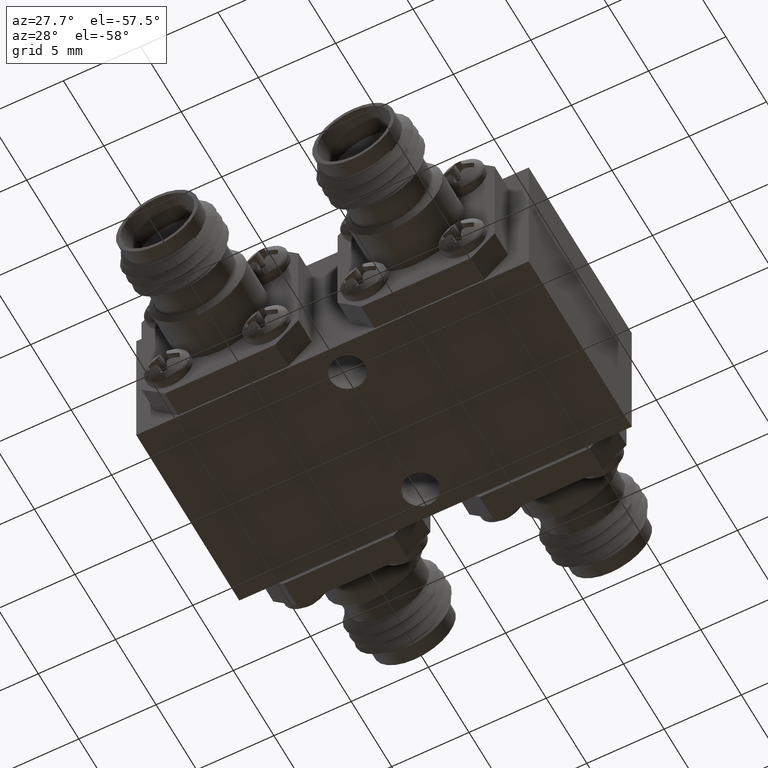
[diagram: clean part render]
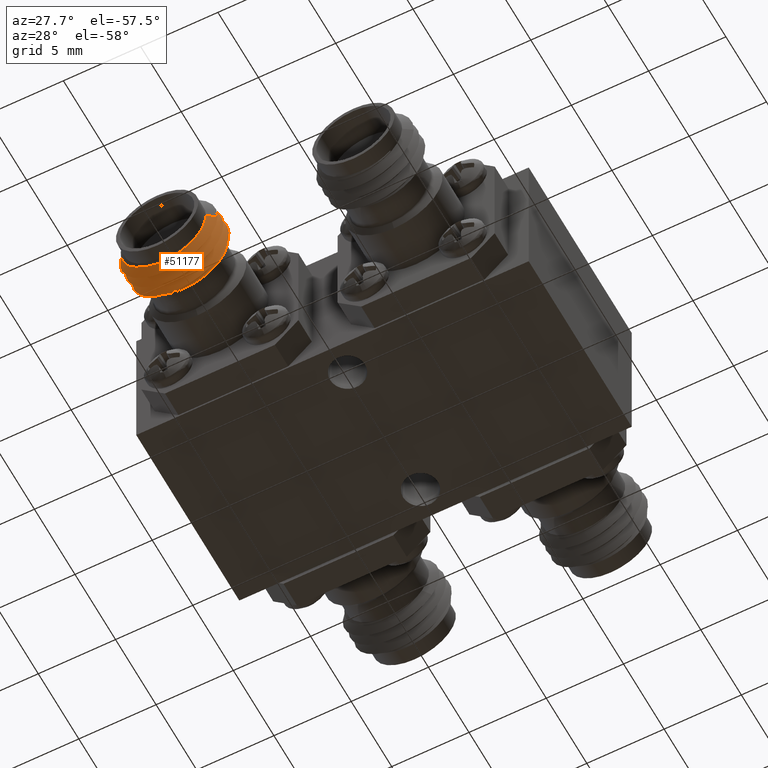
[diagram: same view with one face highlighted and labeled with its STEP entity id]
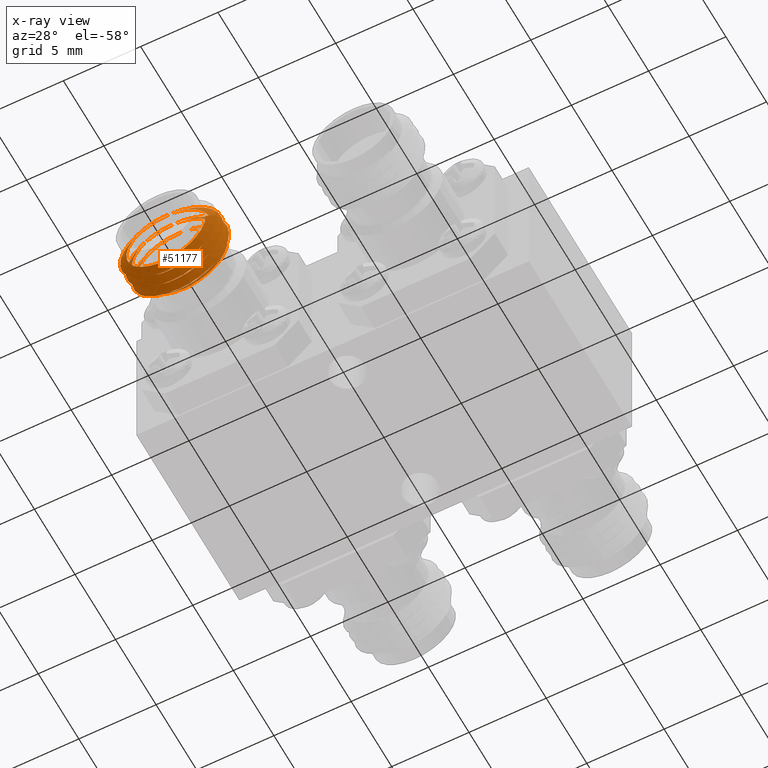
[diagram: x-ray of the same camera — body ghosted, the highlighted face saturated]
A machine part, auxiliary view. The second image highlights one B-rep face of the part: STEP entity #51177.
The next image is the same camera in x-ray: the body ghosted, the highlighted face saturated — about 1% of this face is hidden behind the body in this view.
In plain terms, the highlighted face is a freeform B-spline surface patch.
Its self-contained STEP definition (entity closure, byte-faithful):
#161 = CARTESIAN_POINT ( 'NONE',  ( -0.1361442351804239000, -0.4998955529993042700, 0.1941992246869873600 ) ) ;
#558 = CARTESIAN_POINT ( 'NONE',  ( -0.2168708072393727100, -0.5252314687881065600, 0.3204888043466269700 ) ) ;
#580 = CARTESIAN_POINT ( 'NONE',  ( -0.1263613991168572600, -0.5483796169362547000, 0.2299788764861323000 ) ) ;
#704 =( BOUNDED_CURVE ( )  B_SPLINE_CURVE ( 2, ( #40046, #9433, #52341, #9713, #21230, #3469, #77166, #39791, #27467 ),
 .UNSPECIFIED., .F., .F. ) 
 B_SPLINE_CURVE_WITH_KNOTS ( ( 3, 2, 2, 2, 3 ),
 ( 0.4248554726565971800, 0.4333333333333333500, 0.4666666666666666700, 0.5000000000000000000, 0.5248554726565972700 ),
 .UNSPECIFIED. ) 
 CURVE ( )  GEOMETRIC_REPRESENTATION_ITEM ( )  RATIONAL_B_SPLINE_CURVE ( ( 0.9491836739122823100, 0.9659254611718746100, 1.000000000000000000, 0.8660254037844387100, 1.000000000000000000, 0.8660254037844387100, 1.000000000000000000, 0.9000999426125636500, 0.9491836739122827500 ) ) 
 REPRESENTATION_ITEM ( '' )  );
#846 = CARTESIAN_POINT ( 'NONE',  ( -0.2813798052760326800, -0.5130475620165049200, 0.3139627663214388200 ) ) ;
#1020 = CARTESIAN_POINT ( 'NONE',  ( -0.3179547865677845300, -0.4949059892324147400, 0.1168057375235831100 ) ) ;
#1107 = CARTESIAN_POINT ( 'NONE',  ( -0.2831291927606276500, -0.5391203576769954000, 0.07321198305494819300 ) ) ;
#1381 = CARTESIAN_POINT ( 'NONE',  ( -0.1594905918774847400, -0.5715277650844028400, 0.1063404658402929000 ) ) ;
#1640 = CARTESIAN_POINT ( 'NONE',  ( -0.1072346606628945400, -0.5460648021214397100, 0.1585960969840209700 ) ) ;
#1753 = CARTESIAN_POINT ( 'NONE',  ( -0.3671121924249695600, -0.6010105249794679400, 0.2282308714762600300 ) ) ;
#1804 = ORIENTED_EDGE ( 'NONE', *, *, #8629, .T. ) ;
#1853 = CARTESIAN_POINT ( 'NONE',  ( -0.3751245269368958000, -0.5066510945069707700, 0.2102576376380840300 ) ) ;
#2293 = CARTESIAN_POINT ( 'NONE',  ( -0.2813798052760326800, -0.5686031175720603900, 0.3139627663214388200 ) ) ;
#2666 = CARTESIAN_POINT ( 'NONE',  ( -0.1221612077034202300, -0.5748149545762238900, 0.1904283080464313800 ) ) ;
#3016 = CARTESIAN_POINT ( 'NONE',  ( -0.3671121924249695600, -0.5732327472016901500, 0.2282308714762600300 ) ) ;
#3469 = CARTESIAN_POINT ( 'NONE',  ( -0.3671121924249695600, -0.5454549694239123600, 0.2282308714762600300 ) ) ;
#3758 = CARTESIAN_POINT ( 'NONE',  ( -0.3083433105467156500, -0.4951794569405315600, 0.1087595321339052700 ) ) ;
#4020 = CARTESIAN_POINT ( 'NONE',  ( -0.2934922474503382000, -0.5137016452987064300, 0.3018503937007874800 ) ) ;
#5378 = CARTESIAN_POINT ( 'NONE',  ( -0.1804323543948244400, -0.5020269588777585000, 0.2924909648477928600 ) ) ;
#5909 = ORIENTED_EDGE ( 'NONE', *, *, #49855, .F. ) ;
#6170 = CARTESIAN_POINT ( 'NONE',  ( -0.1993768109073243400, -0.4975330866596320300, 0.09941554239862894500 ) ) ;
#6268 = CARTESIAN_POINT ( 'NONE',  ( -0.2065077525496621900, -0.5553683119653731700, 0.09185039370078755500 ) ) ;
#6442 = CARTESIAN_POINT ( 'NONE',  ( -0.1509272608955909700, -0.4988317759131296600, 0.1445176523538686500 ) ) ;
#6857 = CARTESIAN_POINT ( 'NONE',  ( -0.3514222897869533300, -0.4922142286831716100, 0.1696746851659344000 ) ) ;
#7116 = CARTESIAN_POINT ( 'NONE',  ( -0.1594905918774847400, -0.5437499873066250500, 0.1063404658402929000 ) ) ;
#7379 = CARTESIAN_POINT ( 'NONE',  ( -0.2882534769079255200, -0.4997685058251435400, 0.3396159527050100500 ) ) ;
#7620 = CARTESIAN_POINT ( 'NONE',  ( -0.3927653393371057800, -0.5321759132325508700, 0.2351046904175540000 ) ) ;
#7724 = CARTESIAN_POINT ( 'NONE',  ( -0.2186201947239677100, -0.5824920064609495600, 0.07973802108013614000 ) ) ;
#7884 = CARTESIAN_POINT ( 'NONE',  ( -0.3736386008831431600, -0.5344907280473657500, 0.1637219109154427800 ) ) ;
#7994 = CARTESIAN_POINT ( 'NONE',  ( -0.3514222897869533300, -0.6033253397942827100, 0.1696746851659344000 ) ) ;
#8095 = CARTESIAN_POINT ( 'NONE',  ( -0.3330352991837496300, -0.5050406885612254100, 0.2876906239170858300 ) ) ;
#8279 = CARTESIAN_POINT ( 'NONE',  ( -0.2500000000000000600, -0.4979604496472434000, 0.09185039370078750000 ) ) ;
#8364 = CARTESIAN_POINT ( 'NONE',  ( -0.2500000000005631600, -0.5033776638842839500, 0.3165237646230183400 ) ) ;
#8534 = CARTESIAN_POINT ( 'NONE',  ( -0.1328878075750307400, -0.5037883027572456200, 0.1654699159253149300 ) ) ;
#8629 = EDGE_CURVE ( 'NONE', #40001, #48543, #35160, .T. ) ;
#8661 = CARTESIAN_POINT ( 'NONE',  ( -0.1072346606628945400, -0.4905092465658841800, 0.1585960969840209700 ) ) ;
#8811 = CARTESIAN_POINT ( 'NONE',  ( -0.1451322406942118500, -0.5880940107675852700, 0.1915822765624500500 ) ) ;
#8869 = CARTESIAN_POINT ( 'NONE',  ( -0.3754668339449944700, -0.5071481022586731300, 0.1821323165311400600 ) ) ;
#9433 = CARTESIAN_POINT ( 'NONE',  ( -0.2638236655959558800, -0.5529272642025506700, 0.09185039370078747200 ) ) ;
#9713 = CARTESIAN_POINT ( 'NONE',  ( -0.3357323871489372200, -0.5500845990535419000, 0.1111184988556087600 ) ) ;
#10215 = CARTESIAN_POINT ( 'NONE',  ( -0.2500000000000001100, -0.5812937829805767700, 0.09185039370078750000 ) ) ;
#10264 = CARTESIAN_POINT ( 'NONE',  ( -0.2561986000409319200, -0.4963044659087180200, 0.08942816104423009800 ) ) ;
#10423 = CARTESIAN_POINT ( 'NONE',  ( -0.2500000000000000600, -0.5535160052027989800, 0.09185039370078750000 ) ) ;
#10519 = CARTESIAN_POINT ( 'NONE',  ( -0.2638236655959558800, -0.5251494864247728800, 0.09185039370078747200 ) ) ;
#10522 = VERTEX_POINT ( 'NONE', #23495 ) ;
#10533 = CARTESIAN_POINT ( 'NONE',  ( -0.2977355610572977000, -0.4954446439830104700, 0.1020750765487075000 ) ) ;
#11204 = CARTESIAN_POINT ( 'NONE',  ( -0.2228237090635479500, -0.5385105249794679400, 0.2982725274337025300 ) ) ;
#11470 = CARTESIAN_POINT ( 'NONE',  ( -0.2361763344040443100, -0.5390383753136618300, 0.3018503937007874200 ) ) ;
#11846 = CARTESIAN_POINT ( 'NONE',  ( -0.1417481908065159100, -0.4992907151953301400, 0.1649840083894826800 ) ) ;
#12124 = CARTESIAN_POINT ( 'NONE',  ( -0.2134678926069972800, -0.5027182347185872300, 0.3098540038394581600 ) ) ;
#12389 = CARTESIAN_POINT ( 'NONE',  ( -0.2351699737675444500, -0.4967412596797684000, 0.08867161204034150500 ) ) ;
#12521 = CARTESIAN_POINT ( 'NONE',  ( -0.2117465230920748100, -0.5414351724918102800, 0.05408483469656474200 ) ) ;
#12627 = EDGE_CURVE ( 'NONE', #44652, #27979, #40641, .T. ) ;
#12913 = ORIENTED_EDGE ( 'NONE', *, *, #41632, .T. ) ;
#13085 = CARTESIAN_POINT ( 'NONE',  ( -0.2882534769079255200, -0.5275462836029212200, 0.3396159527050100500 ) ) ;
#13272 = ORIENTED_EDGE ( 'NONE', *, *, #29414, .F. ) ;
#13280 = CARTESIAN_POINT ( 'NONE',  ( -0.2999674696386079300, -0.4959428870814644500, 0.1015352080313546000 ) ) ;
#13362 = CARTESIAN_POINT ( 'NONE',  ( -0.1454881375708198800, -0.5229166539732916800, 0.3013616559882434400 ) ) ;
#13615 = CARTESIAN_POINT ( 'NONE',  ( -0.2168708072393727400, -0.4974536910103286600, 0.3204888043466268000 ) ) ;
#13802 = CARTESIAN_POINT ( 'NONE',  ( -0.2771762909364524100, -0.4968438583128012000, 0.09542825996787246400 ) ) ;
#13882 = CARTESIAN_POINT ( 'NONE',  ( -0.3544014142299046800, -0.4906140132038444000, 0.2080461387316414600 ) ) ;
#13995 = CARTESIAN_POINT ( 'NONE',  ( -0.2813798052760326800, -0.5963808953498382900, 0.3139627663214388200 ) ) ;
#14144 = CARTESIAN_POINT ( 'NONE',  ( -0.2117465230920748400, -0.5969907280473657500, 0.05408483469656492200 ) ) ;
#14260 = CARTESIAN_POINT ( 'NONE',  ( -0.3514222897869533300, -0.5477697842387271300, 0.1696746851659344000 ) ) ;
#14364 = CARTESIAN_POINT ( 'NONE',  ( -0.3096617382165299800, -0.5045501136331003200, 0.3030750499626824700 ) ) ;
#14523 = CARTESIAN_POINT ( 'NONE',  ( -0.2771762909364524100, -0.5523994138683567800, 0.09542825996787246400 ) ) ;
#14787 = CARTESIAN_POINT ( 'NONE',  ( -0.3357323871489372200, -0.6056401546090974800, 0.1111184988556087600 ) ) ;
#14789 = CARTESIAN_POINT ( 'NONE',  ( -0.2500000000000000000, -0.4964332194398289900, 0.08920515338669196500 ) ) ;
#15167 = CARTESIAN_POINT ( 'NONE',  ( -0.3554730156832565100, -0.5081850454235797800, 0.1243283766116333300 ) ) ;
#15185 = VERTEX_POINT ( 'NONE', #72069 ) ;
#15209 = CARTESIAN_POINT ( 'NONE',  ( -0.1263613991168572600, -0.4928240613806990100, 0.2299788764861323000 ) ) ;
#16260 = CARTESIAN_POINT ( 'NONE',  ( -0.2771762909364524100, -0.5246216360905789900, 0.09542825996787246400 ) ) ;
#17597 = VERTEX_POINT ( 'NONE', #8811 ) ;
#19068 = CARTESIAN_POINT ( 'NONE',  ( -0.2361763344040444500, -0.5668161530914396200, 0.3018503937007874800 ) ) ;
#19089 = CARTESIAN_POINT ( 'NONE',  ( -0.2168708072393727100, -0.5530092465658844600, 0.3204888043466269700 ) ) ;
#19363 = CARTESIAN_POINT ( 'NONE',  ( -0.2882534769079255200, -0.5553240613806991200, 0.3396159527050101600 ) ) ;
#19380 = CARTESIAN_POINT ( 'NONE',  ( -0.1594905918774847400, -0.5159722095288471500, 0.1063404658402929000 ) ) ;
#19644 = CARTESIAN_POINT ( 'NONE',  ( -0.3736386008831431600, -0.5067129502695879600, 0.1637219109154427800 ) ) ;
#19773 = CARTESIAN_POINT ( 'NONE',  ( -0.2500000000000000000, -0.4964332194398289900, 0.08920515338669196500 ) ) ;
#19917 = CARTESIAN_POINT ( 'NONE',  ( -0.3357323871489372200, -0.5223068212757643300, 0.1111184988556087600 ) ) ;
#20024 = CARTESIAN_POINT ( 'NONE',  ( -0.1485777102130470000, -0.5894364509053937600, 0.2240261022356406000 ) ) ;
#20178 = CARTESIAN_POINT ( 'NONE',  ( -0.2117465230920748400, -0.5414351724918101700, 0.05408483469656492200 ) ) ;
#20294 = CARTESIAN_POINT ( 'NONE',  ( -0.1328878075750307400, -0.5871216360905789900, 0.1654699159253149300 ) ) ;
#20448 = CARTESIAN_POINT ( 'NONE',  ( -0.1328878075750307400, -0.5037883027572457300, 0.1654699159253149300 ) ) ;
#20835 = CARTESIAN_POINT ( 'NONE',  ( -0.2500000000005631600, -0.5033776638842839500, 0.3165237646230183400 ) ) ;
#20947 = CARTESIAN_POINT ( 'NONE',  ( -0.3633740508772749200, -0.5059247518586516000, 0.2475954126439315600 ) ) ;
#21077 = ORIENTED_EDGE ( 'NONE', *, *, #49970, .T. ) ;
#21114 = CARTESIAN_POINT ( 'NONE',  ( -0.3242459988505010900, -0.5986957101646530600, 0.2710968188988494000 ) ) ;
#21135 = CARTESIAN_POINT ( 'NONE',  ( -0.2499999999999999700, -0.5396271163139100300, 0.3018503937007874800 ) ) ;
#21230 = CARTESIAN_POINT ( 'NONE',  ( -0.3514222897869533300, -0.5477697842387271300, 0.1696746851659344000 ) ) ;
#23484 =( BOUNDED_CURVE ( )  B_SPLINE_CURVE ( 1, ( #49258, #68369 ),
 .UNSPECIFIED., .F., .F. ) 
 B_SPLINE_CURVE_WITH_KNOTS ( ( 2, 2 ),
 ( 0.0000000000000000000, 0.0006745760545211595900 ),
 .UNSPECIFIED. ) 
 CURVE ( )  GEOMETRIC_REPRESENTATION_ITEM ( )  RATIONAL_B_SPLINE_CURVE ( ( 0.9435358094628352200, 0.9435358094628352200 ) ) 
 REPRESENTATION_ITEM ( '' )  );
#23495 = CARTESIAN_POINT ( 'NONE',  ( -0.2500000000000003300, -0.5118493385361322400, 0.3018503937007874800 ) ) ;
#23956 = CARTESIAN_POINT ( 'NONE',  ( -0.2500000000000000600, -0.5257382274250211900, 0.09185039370078750000 ) ) ;
#24214 = CARTESIAN_POINT ( 'NONE',  ( -0.1368327144614679100, -0.4997449665662817600, 0.1866822986378188800 ) ) ;
#24441 =( BOUNDED_CURVE ( )  B_SPLINE_CURVE ( 2, ( #74804, #49957, #62499, #50515, #55691, #50244, #56496, #56750, #25401, #19363, #19089, #43111, #30864, #68257, #25148, #12521, #61964, #68814, #31397, #62796, #74529, #75346, #558, #63049, #25678, #69338, #31926, #36840, #80509, #49406, #24589 ),
 .UNSPECIFIED., .F., .T. ) 
 B_SPLINE_CURVE_WITH_KNOTS ( ( 3, 2, 2, 2, 2, 2, 2, 2, 2, 2, 2, 2, 2, 2, 2, 3 ),
 ( 0.2011687592148475600, 0.2276597651715039400, 0.2656030593667546600, 0.3035463535620053800, 0.3414896477572561000, 0.3794329419525067600, 0.4173762361477574800, 0.4553195303430082600, 0.4932628245382589800, 0.5312061187335097600, 0.5691494129287604200, 0.6070927071240110900, 0.6450360013192617500, 0.6829792955145125300, 0.7209225897097632000, 0.7463925776226306700 ),
 .UNSPECIFIED. ) 
 CURVE ( )  GEOMETRIC_REPRESENTATION_ITEM ( )  RATIONAL_B_SPLINE_CURVE ( ( 0.9435358094628330000, 0.9064624750786318700, 1.000000000000000000, 0.8660254037844387100, 1.000000000000000000, 0.8660254037844387100, 1.000000000000000000, 0.8660254037844387100, 1.000000000000000000, 0.8660254037844387100, 1.000000000000000000, 0.8660254037844387100, 1.000000000000000000, 0.8660254037844387100, 1.000000000000000000, 0.8660254037844387100, 1.000000000000000000, 0.8660254037844387100, 1.000000000000000000, 0.8660254037844387100, 1.000000000000000000, 0.8660254037844387100, 1.000000000000000000, 0.8660254037844387100, 1.000000000000000000, 0.8660254037844387100, 1.000000000000000000, 0.8660254037844387100, 1.000000000000000000, 0.9100676043391943100, 0.9408720650340309800 ) ) 
 REPRESENTATION_ITEM ( '' )  );
#24467 = CARTESIAN_POINT ( 'NONE',  ( -0.1591394198486513200, -0.4985369642963714500, 0.1321621958986707900 ) ) ;
#24589 = CARTESIAN_POINT ( 'NONE',  ( -0.3554730156832565100, -0.5081850454235797800, 0.1243283766116333300 ) ) ;
#24752 = CARTESIAN_POINT ( 'NONE',  ( -0.2352268594237166300, -0.5031042310891761200, 0.3153675905142889200 ) ) ;
#25148 = CARTESIAN_POINT ( 'NONE',  ( -0.1594905918774846300, -0.5437499873066251600, 0.1063404658402927900 ) ) ;
#25401 = CARTESIAN_POINT ( 'NONE',  ( -0.3405094081225156800, -0.5576388761955140000, 0.2873603215612821600 ) ) ;
#25678 = CARTESIAN_POINT ( 'NONE',  ( -0.1263613991168570900, -0.5206018391584769100, 0.2299788764861323300 ) ) ;
#25697 = CARTESIAN_POINT ( 'NONE',  ( -0.1757540011494992400, -0.5014734879424308500, 0.1226039685027255200 ) ) ;
#25960 = CARTESIAN_POINT ( 'NONE',  ( -0.2117465230920748400, -0.5692129502695879600, 0.05408483469656492200 ) ) ;
#26215 = CARTESIAN_POINT ( 'NONE',  ( -0.3357323871489372200, -0.4945290434979864300, 0.1111184988556087600 ) ) ;
#26459 = CARTESIAN_POINT ( 'NONE',  ( -0.1594905918774847400, -0.5993055428621805200, 0.1063404658402929000 ) ) ;
#26568 = CARTESIAN_POINT ( 'NONE',  ( -0.3671121924249695600, -0.5732327472016901500, 0.2282308714762600300 ) ) ;
#26716 = CARTESIAN_POINT ( 'NONE',  ( -0.2771762909364524100, -0.4968438583128012000, 0.09542825996787246400 ) ) ;
#27109 = CARTESIAN_POINT ( 'NONE',  ( -0.1757540011494992400, -0.5014734879424308500, 0.1226039685027255200 ) ) ;
#27351 = CARTESIAN_POINT ( 'NONE',  ( -0.1757540011494992400, -0.5848068212757642200, 0.1226039685027255200 ) ) ;
#27456 = CARTESIAN_POINT ( 'NONE',  ( -0.3657437311068599800, -0.5060297553188959400, 0.2424245883179591300 ) ) ;
#27467 = CARTESIAN_POINT ( 'NONE',  ( -0.2499999999999999700, -0.5396271163139100300, 0.3018503937007874800 ) ) ;
#27509 = CARTESIAN_POINT ( 'NONE',  ( -0.3798147021488946800, -0.4781877094184707700, 0.1867716993515110600 ) ) ;
#27560 = CARTESIAN_POINT ( 'NONE',  ( -0.2500000000000003300, -0.5674048940916878200, 0.3018503937007874800 ) ) ;
#27723 = CARTESIAN_POINT ( 'NONE',  ( -0.1471610396575269700, -0.5863508681187866700, 0.1511967658044440200 ) ) ;
#27979 = VERTEX_POINT ( 'NONE', #33348 ) ;
#28559 = CARTESIAN_POINT ( 'NONE',  ( -0.3357323871489372200, -0.5223068212757642200, 0.1111184988556087600 ) ) ;
#28572 = CARTESIAN_POINT ( 'NONE',  ( -0.3179547865677845300, -0.4949059892324147400, 0.1168057375235831100 ) ) ;
#29120 = CARTESIAN_POINT ( 'NONE',  ( -0.3671121924249695600, -0.5176771916461345700, 0.2282308714762600300 ) ) ;
#29133 = CARTESIAN_POINT ( 'NONE',  ( -0.2921290525529863800, -0.4955736212046120700, 0.09921470123404420300 ) ) ;
#29301 = ORIENTED_EDGE ( 'NONE', *, *, #52530, .F. ) ;
#29414 = EDGE_CURVE ( 'NONE', #45778, #73864, #24441, .T. ) ;
#30171 = CARTESIAN_POINT ( 'NONE',  ( -0.1362736957659035900, -0.5001848014875158700, 0.2091227401781818900 ) ) ;
#30222 = CARTESIAN_POINT ( 'NONE',  ( -0.1642676128510632300, -0.5361957101646530600, 0.2825822885459662300 ) ) ;
#30453 = CARTESIAN_POINT ( 'NONE',  ( -0.1474392773010743700, -0.4989825145470132600, 0.1510760171525814500 ) ) ;
#30742 = CARTESIAN_POINT ( 'NONE',  ( -0.1639285454742067400, -0.4983913343267008000, 0.1263071132054884000 ) ) ;
#30864 = CARTESIAN_POINT ( 'NONE',  ( -0.1263613991168570900, -0.5483796169362547000, 0.2299788764861323300 ) ) ;
#31009 = CARTESIAN_POINT ( 'NONE',  ( -0.1396342527477332800, -0.4994434739393106000, 0.1721221994841359300 ) ) ;
#31107 = CARTESIAN_POINT ( 'NONE',  ( -0.2500000000000003300, -0.5674048940916878200, 0.3018503937007874800 ) ) ;
#31281 = CARTESIAN_POINT ( 'NONE',  ( -0.1516729887390743400, -0.5011435613984749300, 0.2584777926288621700 ) ) ;
#31397 = CARTESIAN_POINT ( 'NONE',  ( -0.3736386008831433200, -0.5344907280473658600, 0.1637219109154427200 ) ) ;
#31648 = CARTESIAN_POINT ( 'NONE',  ( -0.2500000000000000600, -0.5535160052027989800, 0.09185039370078750000 ) ) ;
#31693 = CARTESIAN_POINT ( 'NONE',  ( -0.3564886228565151700, -0.4914667656098321000, 0.1885827147423966600 ) ) ;
#31798 = EDGE_CURVE ( 'NONE', #48543, #10522, #60992, .T. ) ;
#31926 = CARTESIAN_POINT ( 'NONE',  ( -0.1594905918774846300, -0.5159722095288473700, 0.1063404658402927900 ) ) ;
#31944 = CARTESIAN_POINT ( 'NONE',  ( -0.3405094081225156200, -0.5576388761955138900, 0.2873603215612819900 ) ) ;
#32106 = CARTESIAN_POINT ( 'NONE',  ( -0.1485777102130470000, -0.5338808953498382900, 0.2240261022356406000 ) ) ;
#32202 = CARTESIAN_POINT ( 'NONE',  ( -0.3927653393371057800, -0.5043981354547730800, 0.2351046904175540000 ) ) ;
#32467 = CARTESIAN_POINT ( 'NONE',  ( -0.1263613991168572600, -0.5761573947140323800, 0.2299788764861323000 ) ) ;
#32725 = CARTESIAN_POINT ( 'NONE',  ( -0.1454881375708198800, -0.5506944317510693600, 0.3013616559882434400 ) ) ;
#32829 = CARTESIAN_POINT ( 'NONE',  ( -0.3242459988505010900, -0.5431401546090975900, 0.2710968188988494000 ) ) ;
#33101 = CARTESIAN_POINT ( 'NONE',  ( -0.2771762909364524100, -0.6079549694239123600, 0.09542825996787246400 ) ) ;
#33181 = CARTESIAN_POINT ( 'NONE',  ( -0.1451322406942118500, -0.5880940107675852700, 0.1915822765624500500 ) ) ;
#33203 = CARTESIAN_POINT ( 'NONE',  ( -0.2611742543374817600, -0.5035864402788036200, 0.3168853759456938800 ) ) ;
#33306 = CARTESIAN_POINT ( 'NONE',  ( -0.3514222897869533300, -0.5755475620165050300, 0.1696746851659344000 ) ) ;
#33348 = CARTESIAN_POINT ( 'NONE',  ( -0.3179547865677845300, -0.4949059892324147400, 0.1168057375235831100 ) ) ;
#33485 = CARTESIAN_POINT ( 'NONE',  ( -0.3714949327643487000, -0.5075142744879022100, 0.1599947252601655600 ) ) ;
#33644 = CARTESIAN_POINT ( 'NONE',  ( -0.1485777102130470000, -0.5616586731276160800, 0.2240261022356406000 ) ) ;
#34230 = VERTEX_POINT ( 'NONE', #77259 ) ;
#35160 =( BOUNDED_CURVE ( )  B_SPLINE_CURVE ( 2, ( #48904, #11470, #11204, #55201, #74016, #36613, #61439, #79740, #67202 ),
 .UNSPECIFIED., .F., .F. ) 
 B_SPLINE_CURVE_WITH_KNOTS ( ( 3, 2, 2, 2, 3 ),
 ( 0.5248554726565972700, 0.5333333333333333300, 0.5666666666666666500, 0.5999999999999999800, 0.6248554726565971300 ),
 .UNSPECIFIED. ) 
 CURVE ( )  GEOMETRIC_REPRESENTATION_ITEM ( )  RATIONAL_B_SPLINE_CURVE ( ( 0.9491836739122827500, 0.9659254611718750500, 1.000000000000000000, 0.8660254037844387100, 1.000000000000000000, 0.8660254037844387100, 1.000000000000000000, 0.9000999426125641000, 0.9491836739122823100 ) ) 
 REPRESENTATION_ITEM ( '' )  );
#36613 = CARTESIAN_POINT ( 'NONE',  ( -0.1328878075750307400, -0.5315660805350234100, 0.1654699159253149300 ) ) ;
#36840 = CARTESIAN_POINT ( 'NONE',  ( -0.2117465230920748100, -0.5136573947140324900, 0.05408483469656474200 ) ) ;
#37259 = CARTESIAN_POINT ( 'NONE',  ( -0.1744680966708000700, -0.4981169852504059900, 0.1157684554625182100 ) ) ;
#37511 =( BOUNDED_SURFACE ( )  B_SPLINE_SURFACE ( 1, 2, ( 
 ( #58465, #52487, #33101, #14787, #7994, #1753, #21114, #13995, #39675, #45120, #20024, #20294, #27351, #7724, #70278, #76794, #39406, #26568, #77055, #2293, #71081, #57404, #33644, #45387, #77323, #45923, #14523, #63714, #14260, #57667, #32829, #73743, #63351, #30222, #32106, #72772, #51684, #63069, #75640, #19917, #50532, #38222, #63604, #846, #39018, #63869, #64129, #20448, #25697, #57831, #26716, #26215, #6857, #31693, #13882 ),
 ( #26459, #14144, #69908, #69352, #75896, #50784, #44998, #70162, #38757, #76150, #32467, #75366, #1381, #25960, #37948, #44466, #69634, #76413, #31944, #57556, #38487, #32725, #580, #1640, #7116, #20178, #1107, #45277, #7884, #7620, #56771, #13085, #63338, #13362, #51319, #51060, #19380, #44207, #51593, #57046, #19644, #32202, #44734, #7379, #13615, #57309, #15209, #8661, #58624, #46084, #76675, #64397, #45815, #27509, #52379 ) ),
 .UNSPECIFIED., .F., .F., .T. ) 
 B_SPLINE_SURFACE_WITH_KNOTS ( ( 2, 2 ),
 ( 3, 2, 2, 2, 2, 2, 2, 2, 2, 2, 2, 2, 2, 2, 2, 2, 2, 2, 2, 2, 2, 2, 2, 2, 2, 2, 2, 3 ),
 ( 0.0000000000000000000, 1.000000000000000000 ),
 ( 0.0000000000000000000, 0.03333333333333333300, 0.06666666666666666600, 0.1000000000000000100, 0.1333333333333333300, 0.1666666666666666600, 0.2000000000000000100, 0.2333333333333333400, 0.2666666666666666600, 0.2999999999999999900, 0.3333333333333333100, 0.3666666666666666400, 0.4000000000000000200, 0.4333333333333333500, 0.4666666666666666700, 0.5000000000000000000, 0.5333333333333333300, 0.5666666666666666500, 0.5999999999999999800, 0.6333333333333333000, 0.6666666666666666300, 0.6999999999999999600, 0.7333333333333332800, 0.7666666666666667200, 0.8000000000000000400, 0.8333333333333333700, 0.8666666666666667000, 0.8785039370014849900 ),
 .UNSPECIFIED. ) 
 GEOMETRIC_REPRESENTATION_ITEM ( )  RATIONAL_B_SPLINE_SURFACE ( (
 ( 1.000000000000000000, 0.8660254037844387100, 1.000000000000000000, 0.8660254037844387100, 1.000000000000000000, 0.8660254037844387100, 1.000000000000000000, 0.8660254037844387100, 1.000000000000000000, 0.8660254037844387100, 1.000000000000000000, 0.8660254037844387100, 1.000000000000000000, 0.8660254037844387100, 1.000000000000000000, 0.8660254037844387100, 1.000000000000000000, 0.8660254037844387100, 1.000000000000000000, 0.8660254037844387100, 1.000000000000000000, 0.8660254037844387100, 1.000000000000000000, 0.8660254037844387100, 1.000000000000000000, 0.8660254037844387100, 1.000000000000000000, 0.8660254037844387100, 1.000000000000000000, 0.8660254037844387100, 1.000000000000000000, 0.8660254037844387100, 1.000000000000000000, 0.8660254037844387100, 1.000000000000000000, 0.8660254037844387100, 1.000000000000000000, 0.8660254037844387100, 1.000000000000000000, 0.8660254037844387100, 1.000000000000000000, 0.8660254037844387100, 1.000000000000000000, 0.8660254037844387100, 1.000000000000000000, 0.8660254037844387100, 1.000000000000000000, 0.8660254037844387100, 1.000000000000000000, 0.8660254037844387100, 1.000000000000000000, 0.8660254037844387100, 1.000000000000000000, 0.9524231945979483300, 0.9386371596285643100),
 ( 1.000000000000000000, 0.8660254037844387100, 1.000000000000000000, 0.8660254037844387100, 1.000000000000000000, 0.8660254037844387100, 1.000000000000000000, 0.8660254037844387100, 1.000000000000000000, 0.8660254037844387100, 1.000000000000000000, 0.8660254037844387100, 1.000000000000000000, 0.8660254037844387100, 1.000000000000000000, 0.8660254037844387100, 1.000000000000000000, 0.8660254037844387100, 1.000000000000000000, 0.8660254037844387100, 1.000000000000000000, 0.8660254037844387100, 1.000000000000000000, 0.8660254037844387100, 1.000000000000000000, 0.8660254037844387100, 1.000000000000000000, 0.8660254037844387100, 1.000000000000000000, 0.8660254037844387100, 1.000000000000000000, 0.8660254037844387100, 1.000000000000000000, 0.8660254037844387100, 1.000000000000000000, 0.8660254037844387100, 1.000000000000000000, 0.8660254037844387100, 1.000000000000000000, 0.8660254037844387100, 1.000000000000000000, 0.8660254037844387100, 1.000000000000000000, 0.8660254037844387100, 1.000000000000000000, 0.8660254037844387100, 1.000000000000000000, 0.8660254037844387100, 1.000000000000000000, 0.8660254037844387100, 1.000000000000000000, 0.8660254037844387100, 1.000000000000000000, 0.9524231945979483300, 0.9386371596285643100) ) ) 
 REPRESENTATION_ITEM ( '' )  SURFACE ( )  );
#37550 = CARTESIAN_POINT ( 'NONE',  ( -0.1370718612135068700, -0.5003227858104470900, 0.2164876786946744500 ) ) ;
#37620 = CARTESIAN_POINT ( 'NONE',  ( -0.3554730156832565100, -0.5081850454235797800, 0.1243283766116333300 ) ) ;
#37948 = CARTESIAN_POINT ( 'NONE',  ( -0.2831291927606276500, -0.5668981354547731900, 0.07321198305494819300 ) ) ;
#38174 = CARTESIAN_POINT ( 'NONE',  ( -0.1757540011494992400, -0.5570290434979864300, 0.1226039685027255200 ) ) ;
#38222 = CARTESIAN_POINT ( 'NONE',  ( -0.3671121924249695600, -0.5176771916461345700, 0.2282308714762600300 ) ) ;
#38487 = CARTESIAN_POINT ( 'NONE',  ( -0.2168708072393727400, -0.5530092465658842400, 0.3204888043466268000 ) ) ;
#38757 = CARTESIAN_POINT ( 'NONE',  ( -0.2168708072393727400, -0.5807870243436619200, 0.3204888043466268000 ) ) ;
#39018 = CARTESIAN_POINT ( 'NONE',  ( -0.2228237090635479500, -0.5107327472016901500, 0.2982725274337025300 ) ) ;
#39248 = CARTESIAN_POINT ( 'NONE',  ( -0.3553132882760954800, -0.5056161003681672900, 0.2624274544630604800 ) ) ;
#39406 = CARTESIAN_POINT ( 'NONE',  ( -0.3514222897869533300, -0.5755475620165050300, 0.1696746851659344000 ) ) ;
#39510 = CARTESIAN_POINT ( 'NONE',  ( -0.3697137497613993700, -0.5062375630011223300, 0.2319477130769864200 ) ) ;
#39526 =( BOUNDED_CURVE ( )  B_SPLINE_CURVE ( 2, ( #31107, #19068, #74781, #63023, #69310, #75591, #38174, #6268, #31648 ),
 .UNSPECIFIED., .F., .F. ) 
 B_SPLINE_CURVE_WITH_KNOTS ( ( 3, 2, 2, 2, 3 ),
 ( 0.3248554726565971400, 0.3333333333333333100, 0.3666666666666666400, 0.4000000000000000200, 0.4248554726565971800 ),
 .UNSPECIFIED. ) 
 CURVE ( )  GEOMETRIC_REPRESENTATION_ITEM ( )  RATIONAL_B_SPLINE_CURVE ( ( 0.9491836739122823100, 0.9659254611718746100, 1.000000000000000000, 0.8660254037844387100, 1.000000000000000000, 0.8660254037844387100, 1.000000000000000000, 0.9000999426125641000, 0.9491836739122823100 ) ) 
 REPRESENTATION_ITEM ( '' )  );
#39659 = EDGE_CURVE ( 'NONE', #40319, #40001, #704, .T. ) ;
#39675 = CARTESIAN_POINT ( 'NONE',  ( -0.2228237090635479500, -0.5940660805350234100, 0.2982725274337025300 ) ) ;
#39689 = CARTESIAN_POINT ( 'NONE',  ( -0.1485777102130470000, -0.5061031175720605000, 0.2240261022356406000 ) ) ;
#39791 = CARTESIAN_POINT ( 'NONE',  ( -0.2934922474503380300, -0.5414794230764841100, 0.3018503937007875300 ) ) ;
#40001 = VERTEX_POINT ( 'NONE', #21135 ) ;
#40046 = CARTESIAN_POINT ( 'NONE',  ( -0.2500000000000000600, -0.5535160052027989800, 0.09185039370078750000 ) ) ;
#40130 = CARTESIAN_POINT ( 'NONE',  ( -0.2771762909364524100, -0.5801771916461346800, 0.09542825996787246400 ) ) ;
#40303 = CARTESIAN_POINT ( 'NONE',  ( -0.3761791963993925700, -0.5068578140867054900, 0.1988571370895187400 ) ) ;
#40319 = VERTEX_POINT ( 'NONE', #10423 ) ;
#40641 =( BOUNDED_CURVE ( )  B_SPLINE_CURVE ( 2, ( #57232, #69546, #13802, #13280, #1020 ),
 .UNSPECIFIED., .F., .F. ) 
 B_SPLINE_CURVE_WITH_KNOTS ( ( 3, 2, 3 ),
 ( 0.8248554726565972000, 0.8333333333333333700, 0.8474635842303774900 ),
 .UNSPECIFIED. ) 
 CURVE ( )  GEOMETRIC_REPRESENTATION_ITEM ( )  RATIONAL_B_SPLINE_CURVE ( ( 0.9491836739122823100, 0.9659254611718746100, 1.000000000000000000, 0.9432071602493181700, 0.9345641449886015200 ) ) 
 REPRESENTATION_ITEM ( '' )  );
#40715 = FACE_OUTER_BOUND ( 'NONE', #74550, .T. ) ;
#41037 = B_SPLINE_CURVE_WITH_KNOTS ( 'NONE', 3,
 ( #65993, #10264, #72267, #47677, #54499, #29133, #10533, #3758, #60217, #28572 ),
 .UNSPECIFIED., .F., .F.,
 ( 4, 2, 2, 2, 4 ),
 ( 0.01584325104450798300, 0.01631522288888694400, 0.01678719473326590500, 0.01725916657764486500, 0.01773113842202382300 ),
 .UNSPECIFIED. ) ;
#41632 = EDGE_CURVE ( 'NONE', #34230, #40319, #39526, .T. ) ;
#41653 = CARTESIAN_POINT ( 'NONE',  ( -0.3514222897869533300, -0.5199920064609493400, 0.1696746851659344000 ) ) ;
#43111 = CARTESIAN_POINT ( 'NONE',  ( -0.1454881375708197100, -0.5506944317510695800, 0.3013616559882435500 ) ) ;
#43134 = VERTEX_POINT ( 'NONE', #20835 ) ;
#43260 = CARTESIAN_POINT ( 'NONE',  ( -0.2206064918833355900, -0.5028418619769212700, 0.3121433350751728900 ) ) ;
#43528 = CARTESIAN_POINT ( 'NONE',  ( -0.1926471113656254000, -0.4976878696271655500, 0.1029032623162384900 ) ) ;
#43799 = CARTESIAN_POINT ( 'NONE',  ( -0.1647607314257716300, -0.5015867942235450200, 0.2767131782252992300 ) ) ;
#44207 = CARTESIAN_POINT ( 'NONE',  ( -0.2117465230920748400, -0.5136573947140323800, 0.05408483469656492200 ) ) ;
#44466 = CARTESIAN_POINT ( 'NONE',  ( -0.3545118624291804800, -0.5645833206399583100, 0.09233913141333151300 ) ) ;
#44652 = VERTEX_POINT ( 'NONE', #75262 ) ;
#44734 = CARTESIAN_POINT ( 'NONE',  ( -0.3405094081225156200, -0.5020833206399583100, 0.2873603215612819900 ) ) ;
#44998 = CARTESIAN_POINT ( 'NONE',  ( -0.3405094081225156200, -0.5854166539732915700, 0.2873603215612819900 ) ) ;
#45120 = CARTESIAN_POINT ( 'NONE',  ( -0.1642676128510632300, -0.5917512657202086400, 0.2825822885459662300 ) ) ;
#45277 = CARTESIAN_POINT ( 'NONE',  ( -0.3545118624291804800, -0.5368055428621806300, 0.09233913141333151300 ) ) ;
#45387 = CARTESIAN_POINT ( 'NONE',  ( -0.1328878075750307400, -0.5593438583128013100, 0.1654699159253149300 ) ) ;
#45400 = CARTESIAN_POINT ( 'NONE',  ( -0.2361763344040444500, -0.5112605975358840400, 0.3018503937007874800 ) ) ;
#45495 = CARTESIAN_POINT ( 'NONE',  ( -0.3663581675357247000, -0.5077907640458074700, 0.1439717933019057100 ) ) ;
#45764 = CARTESIAN_POINT ( 'NONE',  ( -0.2941304791034956000, -0.5042327314604384500, 0.3098216882141772700 ) ) ;
#45778 = VERTEX_POINT ( 'NONE', #2666 ) ;
#45815 = CARTESIAN_POINT ( 'NONE',  ( -0.3736386008831431600, -0.4789351724918101700, 0.1637219109154427800 ) ) ;
#45923 = CARTESIAN_POINT ( 'NONE',  ( -0.2186201947239677100, -0.5547142286831716600, 0.07973802108013614000 ) ) ;
#46084 = CARTESIAN_POINT ( 'NONE',  ( -0.2117465230920748400, -0.4858796169362545300, 0.05408483469656492200 ) ) ;
#46473 = CARTESIAN_POINT ( 'NONE',  ( -0.2065077525496621900, -0.4998127564098175400, 0.09185039370078755500 ) ) ;
#46570 = CARTESIAN_POINT ( 'NONE',  ( -0.3713367043427987500, -0.5063411661540767600, 0.2266038730669114300 ) ) ;
#47677 = CARTESIAN_POINT ( 'NONE',  ( -0.2746867541037492100, -0.4959316906949931000, 0.09277877532872637300 ) ) ;
#47999 = ORIENTED_EDGE ( 'NONE', *, *, #31798, .T. ) ;
#48543 = VERTEX_POINT ( 'NONE', #23956 ) ;
#48904 = CARTESIAN_POINT ( 'NONE',  ( -0.2499999999999999700, -0.5396271163139100300, 0.3018503937007874800 ) ) ;
#49012 = CARTESIAN_POINT ( 'NONE',  ( -0.1599774228902976200, -0.5014372009825096600, 0.2708782738297376700 ) ) ;
#49258 = CARTESIAN_POINT ( 'NONE',  ( -0.1451322406942118500, -0.5880940107675853800, 0.1915822765624500500 ) ) ;
#49406 = CARTESIAN_POINT ( 'NONE',  ( -0.3287269485846597300, -0.5098639246290537200, 0.08543000522342710000 ) ) ;
#49558 = EDGE_CURVE ( 'NONE', #15185, #34230, #65051, .T. ) ;
#49560 = CARTESIAN_POINT ( 'NONE',  ( -0.2500000000005631600, -0.5033776638842839500, 0.3165237646230183400 ) ) ;
#49824 = CARTESIAN_POINT ( 'NONE',  ( -0.2200896933551407500, -0.4970671036047315000, 0.09125477280185734200 ) ) ;
#49855 = EDGE_CURVE ( 'NONE', #43134, #62847, #73331, .T. ) ;
#49957 = CARTESIAN_POINT ( 'NONE',  ( -0.1246344102491763500, -0.5730718119274254000, 0.1411964473128631500 ) ) ;
#49970 = EDGE_CURVE ( 'NONE', #10522, #44652, #68595, .T. ) ;
#50244 = CARTESIAN_POINT ( 'NONE',  ( -0.3545118624291806500, -0.5645833206399584200, 0.09233913141333136000 ) ) ;
#50515 = CARTESIAN_POINT ( 'NONE',  ( -0.2117465230920748100, -0.5692129502695879600, 0.05408483469656474200 ) ) ;
#50532 = CARTESIAN_POINT ( 'NONE',  ( -0.3514222897869533300, -0.5199920064609493400, 0.1696746851659344000 ) ) ;
#50784 = CARTESIAN_POINT ( 'NONE',  ( -0.3927653393371057800, -0.5877314687881063400, 0.2351046904175540000 ) ) ;
#51060 = CARTESIAN_POINT ( 'NONE',  ( -0.1072346606628945400, -0.5182870243436620300, 0.1585960969840209700 ) ) ;
#51177 = ADVANCED_FACE ( 'NONE', ( #40715 ), #37511, .F. ) ;
#51319 = CARTESIAN_POINT ( 'NONE',  ( -0.1263613991168572600, -0.5206018391584768000, 0.2299788764861323000 ) ) ;
#51506 = ORIENTED_EDGE ( 'NONE', *, *, #12627, .T. ) ;
#51593 = CARTESIAN_POINT ( 'NONE',  ( -0.2831291927606276500, -0.5113425798992176100, 0.07321198305494819300 ) ) ;
#51684 = CARTESIAN_POINT ( 'NONE',  ( -0.1757540011494992400, -0.5292512657202086400, 0.1226039685027255200 ) ) ;
#51798 = CARTESIAN_POINT ( 'NONE',  ( -0.3241842158325452000, -0.5048550753824996300, 0.2946393517948315300 ) ) ;
#52341 = CARTESIAN_POINT ( 'NONE',  ( -0.2771762909364524100, -0.5523994138683567800, 0.09542825996787246400 ) ) ;
#52379 = CARTESIAN_POINT ( 'NONE',  ( -0.3772702954421694500, -0.4773349570124828000, 0.2104985400241142200 ) ) ;
#52487 = CARTESIAN_POINT ( 'NONE',  ( -0.2186201947239677100, -0.6102697842387271300, 0.07973802108013614000 ) ) ;
#52500 = CARTESIAN_POINT ( 'NONE',  ( -0.1642676128510632300, -0.5084179323868752700, 0.2825822885459662300 ) ) ;
#52530 = EDGE_CURVE ( 'NONE', #17597, #45778, #23484, .T. ) ;
#52684 = CARTESIAN_POINT ( 'NONE',  ( -0.3357323871489372200, -0.5778623768313199100, 0.1111184988556087600 ) ) ;
#52866 = CARTESIAN_POINT ( 'NONE',  ( -0.3748571066239594900, -0.5072423412601342300, 0.1765796264340463400 ) ) ;
#53435 = CARTESIAN_POINT ( 'NONE',  ( -0.2500000000000003300, -0.5118493385361322400, 0.3018503937007874800 ) ) ;
#54300 = ORIENTED_EDGE ( 'NONE', *, *, #49558, .T. ) ;
#54499 = CARTESIAN_POINT ( 'NONE',  ( -0.2806261082731430500, -0.4958180924131028700, 0.09457768336142120800 ) ) ;
#55136 = EDGE_CURVE ( 'NONE', #73864, #43134, #69774, .T. ) ;
#55201 = CARTESIAN_POINT ( 'NONE',  ( -0.1642676128510632300, -0.5361957101646530600, 0.2825822885459662300 ) ) ;
#55691 = CARTESIAN_POINT ( 'NONE',  ( -0.2831291927606277000, -0.5668981354547733000, 0.07321198305494804000 ) ) ;
#56496 = CARTESIAN_POINT ( 'NONE',  ( -0.3736386008831433200, -0.5622685058251436500, 0.1637219109154427200 ) ) ;
#56750 = CARTESIAN_POINT ( 'NONE',  ( -0.3927653393371059500, -0.5599536910103287700, 0.2351046904175540200 ) ) ;
#56771 = CARTESIAN_POINT ( 'NONE',  ( -0.3405094081225156200, -0.5298610984177361000, 0.2873603215612819900 ) ) ;
#57046 = CARTESIAN_POINT ( 'NONE',  ( -0.3545118624291804800, -0.5090277650844027300, 0.09233913141333151300 ) ) ;
#57232 = CARTESIAN_POINT ( 'NONE',  ( -0.2500000000000000600, -0.4979604496472434000, 0.09185039370078750000 ) ) ;
#57309 = CARTESIAN_POINT ( 'NONE',  ( -0.1454881375708198800, -0.4951388761955138900, 0.3013616559882434400 ) ) ;
#57404 = CARTESIAN_POINT ( 'NONE',  ( -0.1642676128510632300, -0.5639734879424309600, 0.2825822885459662300 ) ) ;
#57556 = CARTESIAN_POINT ( 'NONE',  ( -0.2882534769079255200, -0.5553240613806990100, 0.3396159527050100500 ) ) ;
#57667 = CARTESIAN_POINT ( 'NONE',  ( -0.3671121924249695600, -0.5454549694239123600, 0.2282308714762600300 ) ) ;
#57831 = CARTESIAN_POINT ( 'NONE',  ( -0.2186201947239677100, -0.4991586731276160800, 0.07973802108013614000 ) ) ;
#58280 = CARTESIAN_POINT ( 'NONE',  ( -0.1757540011494992400, -0.5848068212757642200, 0.1226039685027255200 ) ) ;
#58319 = CARTESIAN_POINT ( 'NONE',  ( -0.2500000000000000600, -0.5257382274250211900, 0.09185039370078750000 ) ) ;
#58402 = CARTESIAN_POINT ( 'NONE',  ( -0.2500000000000001100, -0.5812937829805767700, 0.09185039370078750000 ) ) ;
#58465 = CARTESIAN_POINT ( 'NONE',  ( -0.1757540011494992400, -0.6125845990535419000, 0.1226039685027255200 ) ) ;
#58478 = CARTESIAN_POINT ( 'NONE',  ( -0.2500000000000003300, -0.5118493385361322400, 0.3018503937007874800 ) ) ;
#58579 = CARTESIAN_POINT ( 'NONE',  ( -0.2888151569990242100, -0.5041262702921076600, 0.3115599731955117600 ) ) ;
#58624 = CARTESIAN_POINT ( 'NONE',  ( -0.1594905918774847400, -0.4881944317510693600, 0.1063404658402929000 ) ) ;
#59482 = CARTESIAN_POINT ( 'NONE',  ( -0.2638236655959559400, -0.5807050419803285700, 0.09185039370078750000 ) ) ;
#60027 = ORIENTED_EDGE ( 'NONE', *, *, #74141, .T. ) ;
#60217 = CARTESIAN_POINT ( 'NONE',  ( -0.3133163394336570000, -0.4950441471406688000, 0.1125539756259332400 ) ) ;
#60396 = EDGE_CURVE ( 'NONE', #62847, #27979, #41037, .T. ) ;
#60466 = CARTESIAN_POINT ( 'NONE',  ( -0.3242459988505010900, -0.5153623768313196900, 0.2710968188988494000 ) ) ;
#60978 = ORIENTED_EDGE ( 'NONE', *, *, #60396, .F. ) ;
#60992 =( BOUNDED_CURVE ( )  B_SPLINE_CURVE ( 2, ( #58319, #10519, #16260, #28559, #41653, #29120, #60466, #4020, #53435 ),
 .UNSPECIFIED., .F., .F. ) 
 B_SPLINE_CURVE_WITH_KNOTS ( ( 3, 2, 2, 2, 3 ),
 ( 0.6248554726565971300, 0.6333333333333333000, 0.6666666666666666300, 0.6999999999999999600, 0.7248554726565971100 ),
 .UNSPECIFIED. ) 
 CURVE ( )  GEOMETRIC_REPRESENTATION_ITEM ( )  RATIONAL_B_SPLINE_CURVE ( ( 0.9491836739122823100, 0.9659254611718746100, 1.000000000000000000, 0.8660254037844387100, 1.000000000000000000, 0.8660254037844387100, 1.000000000000000000, 0.9000999426125641000, 0.9491836739122823100 ) ) 
 REPRESENTATION_ITEM ( '' )  );
#61439 = CARTESIAN_POINT ( 'NONE',  ( -0.1757540011494992400, -0.5292512657202086400, 0.1226039685027255200 ) ) ;
#61550 = CARTESIAN_POINT ( 'NONE',  ( -0.1930628474467415100, -0.5023198963458531700, 0.3010798517846340300 ) ) ;
#61964 = CARTESIAN_POINT ( 'NONE',  ( -0.2831291927606277000, -0.5391203576769954000, 0.07321198305494804000 ) ) ;
#62067 = ORIENTED_EDGE ( 'NONE', *, *, #39659, .T. ) ;
#62499 = CARTESIAN_POINT ( 'NONE',  ( -0.1594905918774846300, -0.5715277650844028400, 0.1063404658402927900 ) ) ;
#62796 = CARTESIAN_POINT ( 'NONE',  ( -0.3927653393371059500, -0.5321759132325509800, 0.2351046904175540200 ) ) ;
#62847 = VERTEX_POINT ( 'NONE', #14789 ) ;
#63023 = CARTESIAN_POINT ( 'NONE',  ( -0.1642676128510632300, -0.5639734879424309600, 0.2825822885459662300 ) ) ;
#63049 = CARTESIAN_POINT ( 'NONE',  ( -0.1454881375708197100, -0.5229166539732916800, 0.3013616559882435500 ) ) ;
#63069 = CARTESIAN_POINT ( 'NONE',  ( -0.2186201947239677100, -0.5269364509053938700, 0.07973802108013614000 ) ) ;
#63338 = CARTESIAN_POINT ( 'NONE',  ( -0.2168708072393727400, -0.5252314687881064500, 0.3204888043466268000 ) ) ;
#63351 = CARTESIAN_POINT ( 'NONE',  ( -0.2228237090635479500, -0.5385105249794679400, 0.2982725274337025300 ) ) ;
#63604 = CARTESIAN_POINT ( 'NONE',  ( -0.3242459988505010900, -0.5153623768313196900, 0.2710968188988494000 ) ) ;
#63714 = CARTESIAN_POINT ( 'NONE',  ( -0.3357323871489372200, -0.5500845990535419000, 0.1111184988556087600 ) ) ;
#63869 = CARTESIAN_POINT ( 'NONE',  ( -0.1642676128510632300, -0.5084179323868752700, 0.2825822885459662300 ) ) ;
#64129 = CARTESIAN_POINT ( 'NONE',  ( -0.1485777102130470000, -0.5061031175720605000, 0.2240261022356406000 ) ) ;
#64351 = CARTESIAN_POINT ( 'NONE',  ( -0.3045551692497234800, -0.5044446640125909200, 0.3055832177931162600 ) ) ;
#64397 = CARTESIAN_POINT ( 'NONE',  ( -0.3545118624291804800, -0.4812499873066249900, 0.09233913141333151300 ) ) ;
#64587 = CARTESIAN_POINT ( 'NONE',  ( -0.2065077525496622200, -0.5831460897431508500, 0.09185039370078754200 ) ) ;
#64709 = CARTESIAN_POINT ( 'NONE',  ( -0.2934922474503382000, -0.5692572008542620100, 0.3018503937007874800 ) ) ;
#65051 =( BOUNDED_CURVE ( )  B_SPLINE_CURVE ( 2, ( #58402, #59482, #40130, #52684, #33306, #3016, #70752, #64709, #27560 ),
 .UNSPECIFIED., .F., .F. ) 
 B_SPLINE_CURVE_WITH_KNOTS ( ( 3, 2, 2, 2, 3 ),
 ( 0.2248554726565971900, 0.2333333333333333400, 0.2666666666666666600, 0.2999999999999999900, 0.3248554726565971400 ),
 .UNSPECIFIED. ) 
 CURVE ( )  GEOMETRIC_REPRESENTATION_ITEM ( )  RATIONAL_B_SPLINE_CURVE ( ( 0.9491836739122823100, 0.9659254611718747200, 1.000000000000000000, 0.8660254037844387100, 1.000000000000000000, 0.8660254037844387100, 1.000000000000000000, 0.9000999426125641000, 0.9491836739122823100 ) ) 
 REPRESENTATION_ITEM ( '' )  );
#65427 = CARTESIAN_POINT ( 'NONE',  ( -0.3487128439574522800, -0.5054185025851819500, 0.2714386484165978200 ) ) ;
#65787 = ORIENTED_EDGE ( 'NONE', *, *, #55136, .F. ) ;
#65993 = CARTESIAN_POINT ( 'NONE',  ( -0.2500000000000000000, -0.4964332194398289900, 0.08920515338669196500 ) ) ;
#67202 = CARTESIAN_POINT ( 'NONE',  ( -0.2500000000000000600, -0.5257382274250211900, 0.09185039370078750000 ) ) ;
#68257 = CARTESIAN_POINT ( 'NONE',  ( -0.1072346606628943700, -0.5460648021214398200, 0.1585960969840209100 ) ) ;
#68369 = CARTESIAN_POINT ( 'NONE',  ( -0.1221612077034202300, -0.5748149545762238900, 0.1904283080464313800 ) ) ;
#68405 = CARTESIAN_POINT ( 'NONE',  ( -0.1481569234516342800, -0.5010001791428219100, 0.2519522048948755800 ) ) ;
#68595 =( BOUNDED_CURVE ( )  B_SPLINE_CURVE ( 2, ( #58478, #45400, #77064, #52500, #39689, #8534, #27109, #46473, #8279 ),
 .UNSPECIFIED., .F., .F. ) 
 B_SPLINE_CURVE_WITH_KNOTS ( ( 3, 2, 2, 2, 3 ),
 ( 0.7248554726565971100, 0.7333333333333332800, 0.7666666666666667200, 0.8000000000000000400, 0.8248554726565972000 ),
 .UNSPECIFIED. ) 
 CURVE ( )  GEOMETRIC_REPRESENTATION_ITEM ( )  RATIONAL_B_SPLINE_CURVE ( ( 0.9491836739122823100, 0.9659254611718746100, 1.000000000000000000, 0.8660254037844387100, 1.000000000000000000, 0.8660254037844387100, 1.000000000000000000, 0.9000999426125641000, 0.9491836739122823100 ) ) 
 REPRESENTATION_ITEM ( '' )  );
#68686 = CARTESIAN_POINT ( 'NONE',  ( -0.2425884422955713000, -0.5032391885776768000, 0.3162839183564145600 ) ) ;
#68814 = CARTESIAN_POINT ( 'NONE',  ( -0.3545118624291806500, -0.5368055428621806300, 0.09233913141333136000 ) ) ;
#69310 = CARTESIAN_POINT ( 'NONE',  ( -0.1485777102130470000, -0.5616586731276160800, 0.2240261022356406000 ) ) ;
#69338 = CARTESIAN_POINT ( 'NONE',  ( -0.1072346606628943700, -0.5182870243436622500, 0.1585960969840209100 ) ) ;
#69352 = CARTESIAN_POINT ( 'NONE',  ( -0.3545118624291804800, -0.5923610984177361000, 0.09233913141333151300 ) ) ;
#69546 = CARTESIAN_POINT ( 'NONE',  ( -0.2638236655959558800, -0.4973717086469950900, 0.09185039370078747200 ) ) ;
#69634 = CARTESIAN_POINT ( 'NONE',  ( -0.3736386008831431600, -0.5622685058251435400, 0.1637219109154427800 ) ) ;
#69774 = B_SPLINE_CURVE_WITH_KNOTS ( 'NONE', 3,
 ( #15167, #76625, #45495, #33485, #71185, #52866, #8869, #40303, #1853, #46570, #39510, #27456, #20947, #39248, #65427, #8095, #51798, #14364, #64351, #45764, #58579, #70642, #33203, #8364 ),
 .UNSPECIFIED., .F., .F.,
 ( 4, 2, 2, 2, 2, 2, 2, 2, 2, 2, 2, 4 ),
 ( 0.0000000000000000000, 0.0008512232122835481800, 0.001276834818425320300, 0.001702446424567092200, 0.002553669636850633600, 0.002979281242992404300, 0.003404892849134174500, 0.004256116061417715400, 0.005107339273701257600, 0.005532950879843025700, 0.005958562485984794700, 0.006809785698268334300 ),
 .UNSPECIFIED. ) ;
#69908 = CARTESIAN_POINT ( 'NONE',  ( -0.2831291927606276500, -0.5946759132325508700, 0.07321198305494819300 ) ) ;
#70162 = CARTESIAN_POINT ( 'NONE',  ( -0.2882534769079255200, -0.5831018391584766900, 0.3396159527050100500 ) ) ;
#70278 = CARTESIAN_POINT ( 'NONE',  ( -0.2771762909364524100, -0.5801771916461346800, 0.09542825996787246400 ) ) ;
#70642 = CARTESIAN_POINT ( 'NONE',  ( -0.2725669689658095100, -0.5038053620831687300, 0.3156567926171850400 ) ) ;
#70752 = CARTESIAN_POINT ( 'NONE',  ( -0.3242459988505010900, -0.5709179323868753800, 0.2710968188988494000 ) ) ;
#71081 = CARTESIAN_POINT ( 'NONE',  ( -0.2228237090635479500, -0.5662883027572457300, 0.2982725274337025300 ) ) ;
#71185 = CARTESIAN_POINT ( 'NONE',  ( -0.3728779715944311500, -0.5074258007081936500, 0.1655196532223967600 ) ) ;
#72069 = CARTESIAN_POINT ( 'NONE',  ( -0.2500000000000001100, -0.5812937829805767700, 0.09185039370078750000 ) ) ;
#72267 = CARTESIAN_POINT ( 'NONE',  ( -0.2624438264906203700, -0.4961769412730502900, 0.09019026204513117000 ) ) ;
#72772 = CARTESIAN_POINT ( 'NONE',  ( -0.1328878075750307400, -0.5315660805350234100, 0.1654699159253149300 ) ) ;
#73331 = B_SPLINE_CURVE_WITH_KNOTS ( 'NONE', 3,
 ( #49560, #68686, #24752, #43260, #12124, #61550, #5378, #43799, #49012, #31281, #68405, #74949, #74676, #37550, #30171, #161, #24214, #31009, #11846, #30453, #6442, #24467, #30742, #37259, #80912, #43528, #6170, #49824, #12389, #19773 ),
 .UNSPECIFIED., .F., .F.,
 ( 4, 2, 2, 2, 2, 2, 2, 2, 2, 2, 2, 2, 2, 2, 4 ),
 ( 0.006809785698268334300, 0.007374377282408311700, 0.007938968866548289100, 0.009068152034828243900, 0.009632743618968223100, 0.01019733520310819900, 0.01076192678724817800, 0.01132651837138815400, 0.01189110995552813300, 0.01245570153966811000, 0.01302029312380808800, 0.01358488470794806700, 0.01414947629208804600, 0.01471406787622802500, 0.01584325104450798300 ),
 .UNSPECIFIED. ) ;
#73743 = CARTESIAN_POINT ( 'NONE',  ( -0.2813798052760326800, -0.5408253397942827100, 0.3139627663214388200 ) ) ;
#73864 = VERTEX_POINT ( 'NONE', #37620 ) ;
#74016 = CARTESIAN_POINT ( 'NONE',  ( -0.1485777102130470000, -0.5338808953498382900, 0.2240261022356406000 ) ) ;
#74141 = EDGE_CURVE ( 'NONE', #17597, #15185, #80791, .T. ) ;
#74529 = CARTESIAN_POINT ( 'NONE',  ( -0.3405094081225156800, -0.5298610984177362100, 0.2873603215612821600 ) ) ;
#74550 = EDGE_LOOP ( 'NONE', ( #29301, #60027, #54300, #12913, #62067, #1804, #47999, #21077, #51506, #60978, #5909, #65787, #13272 ) ) ;
#74676 = CARTESIAN_POINT ( 'NONE',  ( -0.1401140701202485700, -0.5005861182671206300, 0.2310266799094274100 ) ) ;
#74781 = CARTESIAN_POINT ( 'NONE',  ( -0.2228237090635479500, -0.5662883027572457300, 0.2982725274337025300 ) ) ;
#74804 = CARTESIAN_POINT ( 'NONE',  ( -0.1221612077034202300, -0.5748149545762240000, 0.1904283080464314000 ) ) ;
#74949 = CARTESIAN_POINT ( 'NONE',  ( -0.1423810154129610000, -0.5007204485408548500, 0.2382585541786197400 ) ) ;
#75262 = CARTESIAN_POINT ( 'NONE',  ( -0.2500000000000000600, -0.4979604496472434000, 0.09185039370078750000 ) ) ;
#75346 = CARTESIAN_POINT ( 'NONE',  ( -0.2882534769079255200, -0.5275462836029214400, 0.3396159527050101600 ) ) ;
#75366 = CARTESIAN_POINT ( 'NONE',  ( -0.1072346606628945400, -0.5738425798992176100, 0.1585960969840209700 ) ) ;
#75591 = CARTESIAN_POINT ( 'NONE',  ( -0.1328878075750307400, -0.5593438583128013100, 0.1654699159253149300 ) ) ;
#75640 = CARTESIAN_POINT ( 'NONE',  ( -0.2771762909364524100, -0.5246216360905789900, 0.09542825996787246400 ) ) ;
#75896 = CARTESIAN_POINT ( 'NONE',  ( -0.3736386008831431600, -0.5900462836029212200, 0.1637219109154427800 ) ) ;
#76150 = CARTESIAN_POINT ( 'NONE',  ( -0.1454881375708198800, -0.5784722095288472600, 0.3013616559882434400 ) ) ;
#76413 = CARTESIAN_POINT ( 'NONE',  ( -0.3927653393371057800, -0.5599536910103287700, 0.2351046904175540000 ) ) ;
#76625 = CARTESIAN_POINT ( 'NONE',  ( -0.3616018686696636500, -0.5079836675427705800, 0.1338575460304276000 ) ) ;
#76675 = CARTESIAN_POINT ( 'NONE',  ( -0.2831291927606276500, -0.4835648021214397600, 0.07321198305494819300 ) ) ;
#76794 = CARTESIAN_POINT ( 'NONE',  ( -0.3357323871489372200, -0.5778623768313196900, 0.1111184988556087600 ) ) ;
#77055 = CARTESIAN_POINT ( 'NONE',  ( -0.3242459988505010900, -0.5709179323868753800, 0.2710968188988494000 ) ) ;
#77064 = CARTESIAN_POINT ( 'NONE',  ( -0.2228237090635479500, -0.5107327472016901500, 0.2982725274337025300 ) ) ;
#77166 = CARTESIAN_POINT ( 'NONE',  ( -0.3242459988505010900, -0.5431401546090975900, 0.2710968188988494000 ) ) ;
#77259 = CARTESIAN_POINT ( 'NONE',  ( -0.2500000000000003300, -0.5674048940916878200, 0.3018503937007874800 ) ) ;
#77323 = CARTESIAN_POINT ( 'NONE',  ( -0.1757540011494992400, -0.5570290434979864300, 0.1226039685027255200 ) ) ;
#79740 = CARTESIAN_POINT ( 'NONE',  ( -0.2065077525496621900, -0.5275905341875952700, 0.09185039370078755500 ) ) ;
#80509 = CARTESIAN_POINT ( 'NONE',  ( -0.2831291927606277000, -0.5113425798992176100, 0.07321198305494804000 ) ) ;
#80791 =( BOUNDED_CURVE ( )  B_SPLINE_CURVE ( 2, ( #33181, #27723, #58280, #64587, #10215 ),
 .UNSPECIFIED., .F., .T. ) 
 B_SPLINE_CURVE_WITH_KNOTS ( ( 3, 2, 3 ),
 ( 0.1767275469719470900, 0.2000000000000000100, 0.2248554726565971900 ),
 .UNSPECIFIED. ) 
 CURVE ( )  GEOMETRIC_REPRESENTATION_ITEM ( )  RATIONAL_B_SPLINE_CURVE ( ( 0.9435358094628345500, 0.9064624750786298700, 1.000000000000000000, 0.9000999426125639900, 0.9491836739122823100 ) ) 
 REPRESENTATION_ITEM ( '' )  );
#80912 = CARTESIAN_POINT ( 'NONE',  ( -0.1802070669642833700, -0.4979813770513597500, 0.1110816410258478000 ) ) ;